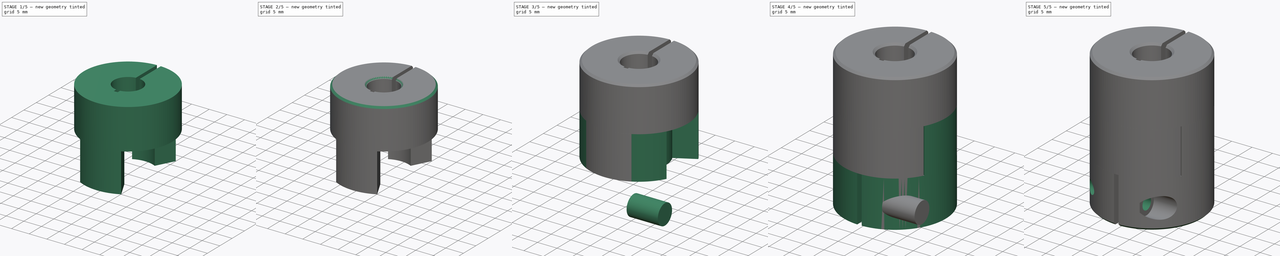
[diagram: build sequence overview — one tinted view per stage of 5, left to right]
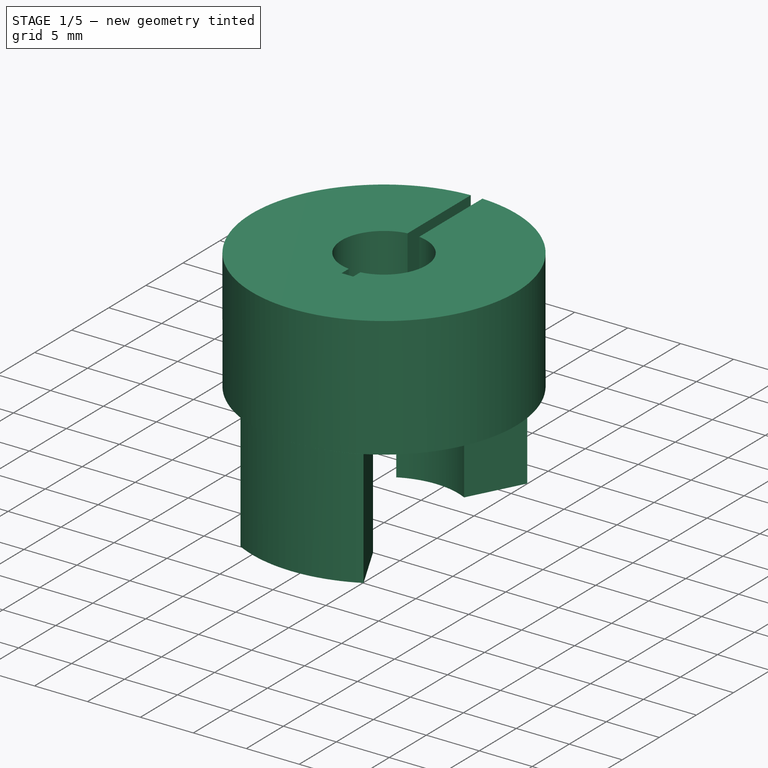
[diagram: stage 1 of 5 — iso view after this stage's code; geometry added in this stage tinted green]
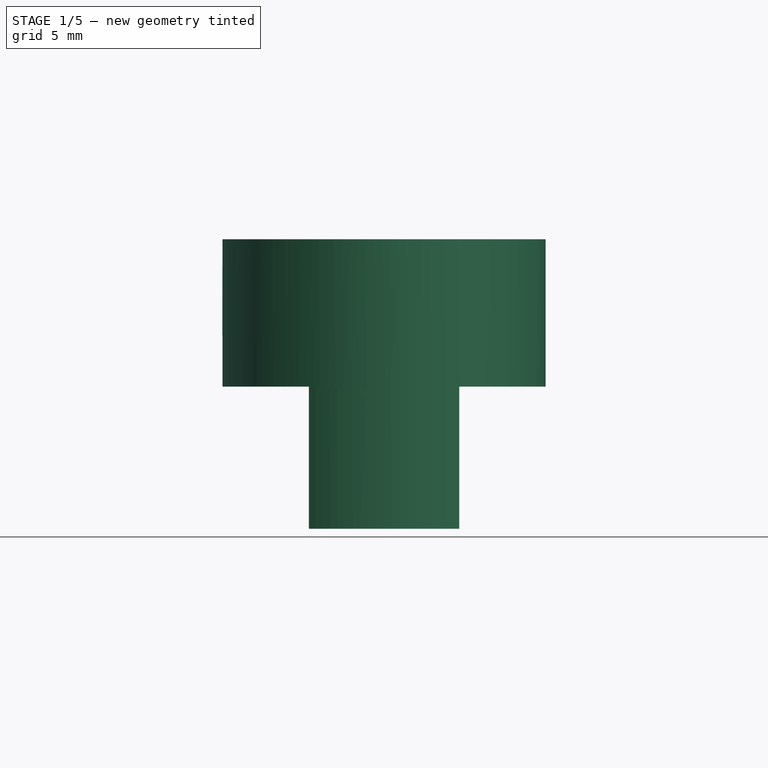
[diagram: stage 1 of 5 — front view after this stage's code; geometry added in this stage tinted green]
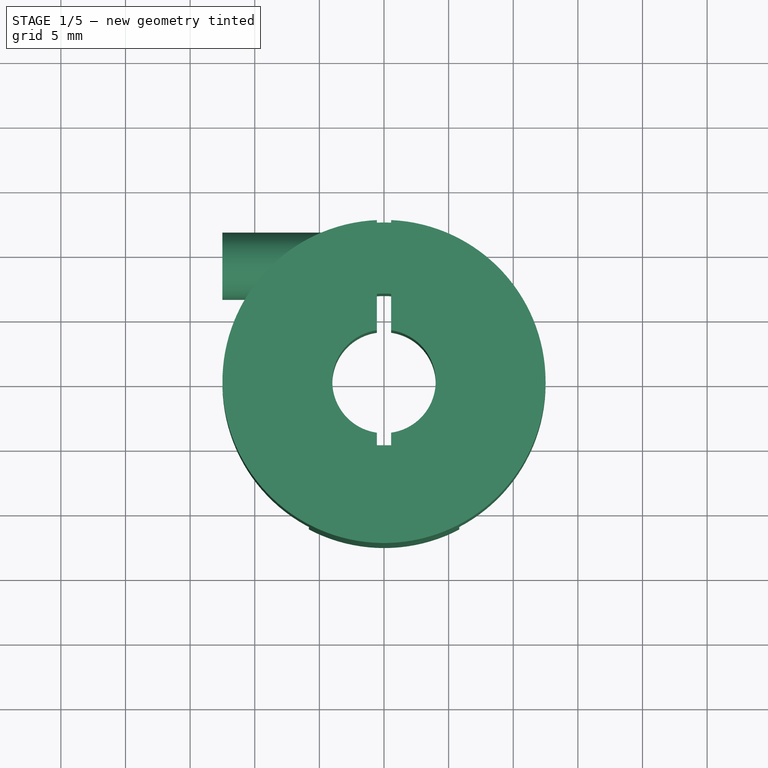
[diagram: stage 1 of 5 — top view after this stage's code; geometry added in this stage tinted green]
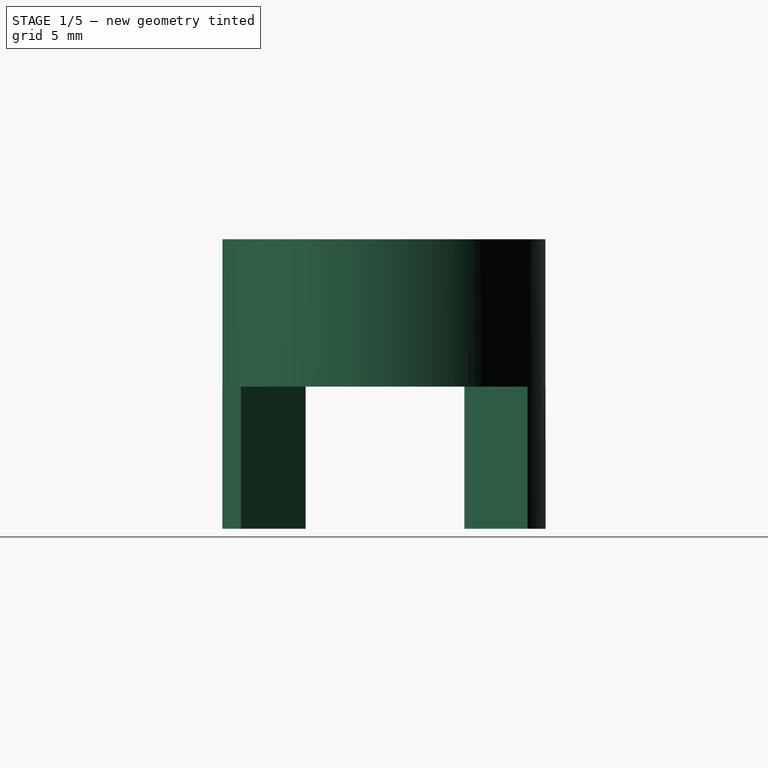
[diagram: stage 1 of 5 — right view after this stage's code; geometry added in this stage tinted green]
FCSTD DOCUMENT  (FreeCAD 0.16R6703 (Git))
Label: Zaxis_coupling_5x8mm
License: All rights reserved
LicenseURL: http://en.wikipedia.org/wiki/All_rights_reserved
objects: Sketcher::SketchObject×12, PartDesign::Pad×6, PartDesign::Pocket×5, PartDesign::Chamfer×4, Part::Cut×2, PartDesign::Revolution×1
note: 42 computed .brp shape members not serialized (recipe doc carries the construction recipe); baked Part::Feature solids carry a one-line shape summary decoded from their .brp

FEATURE [Sketcher::SketchObject] Sketch005
  Placement = pos=(0,0,22.4) rot=(0,0,1;0rad)
  sketch-geometry (8):
    g0: ArcOfCircle CenterX=0.0107961 CenterY=-0.00114549 CenterZ=0 NormalX=0 NormalY=0 NormalZ=1 Radius=12.5 StartAngle=4.2277 EndAngle=5.19555
    g1: ArcOfCircle CenterX=4.1e-11 CenterY=-0.00124568 CenterZ=0 NormalX=0 NormalY=0 NormalZ=1 Radius=7 StartAngle=1.09507 EndAngle=2.04652
    g2: LineSegment StartX=3.2059 StartY=6.22147 StartZ=0 EndX=5.75166 EndY=11.1026 EndZ=0
    g3: LineSegment StartX=-3.2059 StartY=6.22147 StartZ=0 EndX=-5.7395 EndY=11.0977 EndZ=0
    g4: LineSegment StartX=-5.81333 StartY=-11.0614 StartZ=0 EndX=-3.21246 EndY=-6.06508 EndZ=0
    g5: LineSegment StartX=5.81807 StartY=-11.0703 StartZ=0 EndX=3.21246 EndY=-6.06508 EndZ=0
    g6: ArcOfCircle CenterX=0 CenterY=0.154251 CenterZ=0 NormalX=0 NormalY=0 NormalZ=1 Radius=7 StartAngle=4.23561 EndAngle=5.18917
    g7: ArcOfCircle CenterX=0.0107961 CenterY=-0.00114549 CenterZ=0 NormalX=0 NormalY=0 NormalZ=1 Radius=12.5 StartAngle=1.09362 EndAngle=2.04882
  constraints (18):
    c: Radius(g0) = 12.5
    c: Coincident(g3,g1)
    c: Symmetric(g1,g1,g-2)
    c: Radius(g1) = 7
    c: Angle(g2,g3) = 0.959931
    c: Coincident(g6,g4)
    c: Coincident(g6,g5)
    c: Symmetric(g4,g5,g-2)
    c: Radius(g6) = 7
    c: Angle(g4,g5) = 0.959931
    c: Coincident(g0,g4)
    c: Coincident(g7,g3)
    c: Equal(g0,g7)
    c: Coincident(g0,g5)
    c: PointOnObject(g7,g2)
    c: Coincident(g0,g7)
    c: Coincident(g2,g7)
    c: Coincident(g2,g1)
FEATURE [PartDesign::Pad] Pad002
  Length = 11
  Length2 = 100
  Placement = pos=(0,0,22.4) rot=(0,0,1;0rad)
  Reversed = true
  Sketch = -> Sketch005
  Type = 0
FEATURE [Sketcher::SketchObject] Sketch006
  Placement = pos=(0,0,22.4) rot=(0,0,1;0rad)
  Support = -> Pad002 [Face11]
  sketch-geometry (1):
    g0: Circle CenterX=0 CenterY=0 CenterZ=0 NormalX=0 NormalY=0 NormalZ=1 Radius=12.5
  constraints (2):
    c: Coincident(g0,g-1)
    c: Radius(g0) = 12.5
FEATURE [PartDesign::Pad] Pad003
  Length = 11.4
  Length2 = 100
  Placement = pos=(0,0,22.4) rot=(0,0,1;0rad)
  Sketch = -> Sketch006
  Type = 0
FEATURE [Sketcher::SketchObject] Sketch007
  Placement = pos=(0,0,33.8) rot=(0,0,1;0rad)
  Support = -> Pad003 [Face1]
  sketch-geometry (8):
    g0: ArcOfCircle CenterX=0 CenterY=0 CenterZ=0 NormalX=0 NormalY=0 NormalZ=1 Radius=4 StartAngle=4.85033 EndAngle=7.71604
    g1: LineSegment StartX=-0.55 StartY=12.5676 StartZ=0 EndX=0.55 EndY=12.5676 EndZ=0
    g2: LineSegment StartX=0.55 StartY=12.5676 StartZ=0 EndX=0.55 EndY=3.96201 EndZ=0
    g3: LineSegment StartX=0.55 StartY=-4.93244 StartZ=0 EndX=-0.55 EndY=-4.93244 EndZ=0
    g4: LineSegment StartX=-0.55 StartY=-4.93244 StartZ=0 EndX=-0.55 EndY=-3.96201 EndZ=0
    g5: LineSegment StartX=-0.55 StartY=3.96201 StartZ=0 EndX=-0.55 EndY=12.5676 EndZ=0
    g6: LineSegment StartX=0.55 StartY=-3.96201 StartZ=0 EndX=0.55 EndY=-4.93244 EndZ=0
    g7: ArcOfCircle CenterX=0 CenterY=0 CenterZ=0 NormalX=0 NormalY=0 NormalZ=1 Radius=4 StartAngle=1.70873 EndAngle=4.57445
  constraints (21):
    c: Coincident(g0,g-1)
    c: Radius(g0) = 4
    c: Coincident(g1,g2)
    c: Coincident(g6,g3)
    c: Coincident(g3,g4)
    c: Coincident(g5,g1)
    c: Horizontal(g1)
    c: Horizontal(g3)
    c: Vertical(g2)
    c: Vertical(g4)
    c: Symmetric(g1,g1,g-2)
    c: DistanceX(g3,g3) = 1.1
    c: DistanceY(g4,g5) = 17.5
    c: Tangent(g4,g5)
    c: Tangent(g2,g6)
    c: Coincident(g0,g6)
    c: Coincident(g7,g4)
    c: Equal(g0,g7)
    c: Coincident(g0,g2)
    c: Coincident(g7,g5)
    c: Coincident(g0,g7)
FEATURE [PartDesign::Pocket] Pocket002
  Length = 11.4
  Placement = pos=(0,0,22.4) rot=(0,0,1;0rad)
  Sketch = -> Sketch007
  Type = 0
FEATURE [Sketcher::SketchObject] Sketch010
  Placement = pos=(-12.5,0,0) rot=(0.57735,0.57735,0.57735;2.0944rad)
  sketch-geometry (1):
    g0: Circle CenterX=9 CenterY=29 CenterZ=0 NormalX=0 NormalY=0 NormalZ=1 Radius=2.6
  constraints (1):
    c: Radius(g0) = 2.6
FEATURE [PartDesign::Pad] Pad005
  Length = 8
  Length2 = 100
  Placement = pos=(-12.5,0,0) rot=(0.57735,0.57735,0.57735;2.0944rad)
  Sketch = -> Sketch010
  Type = 0
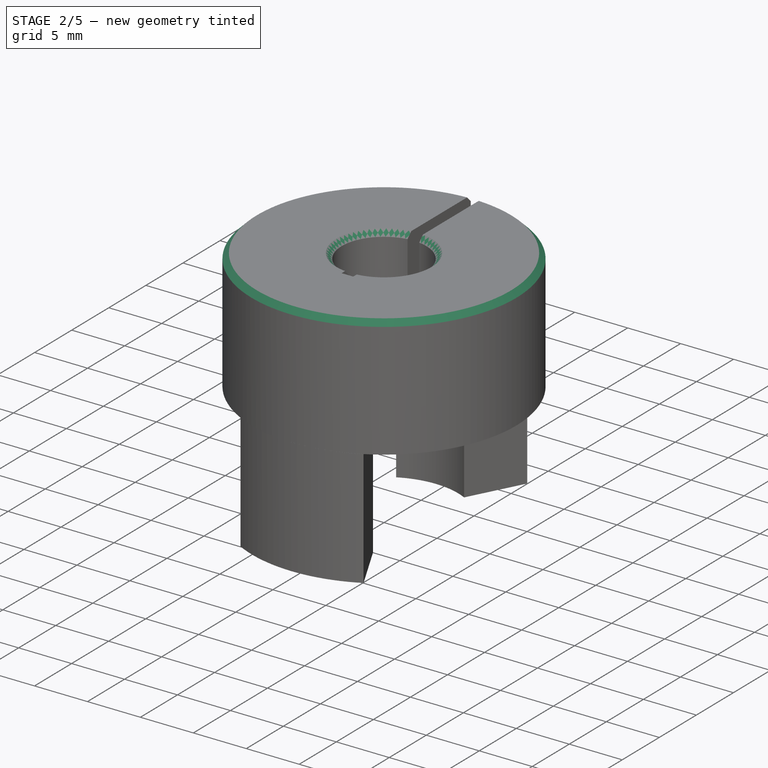
[diagram: stage 2 of 5 — iso view after this stage's code; geometry added in this stage tinted green]
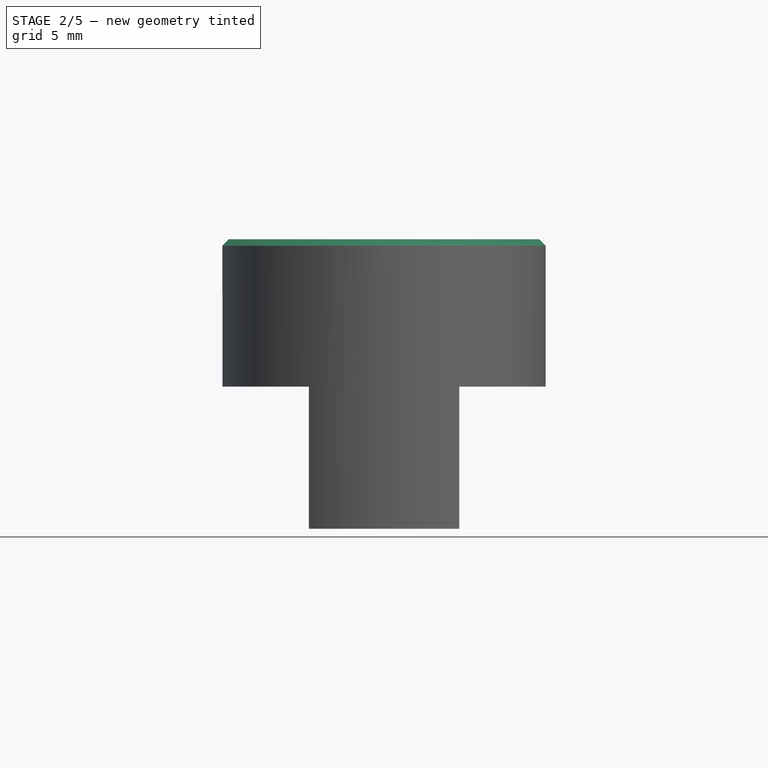
[diagram: stage 2 of 5 — front view after this stage's code; geometry added in this stage tinted green]
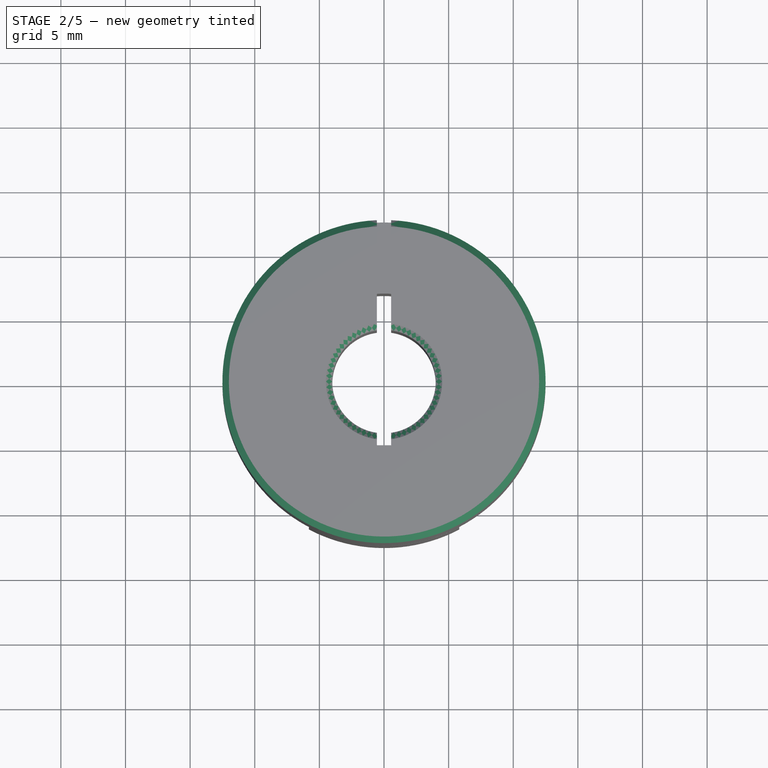
[diagram: stage 2 of 5 — top view after this stage's code; geometry added in this stage tinted green]
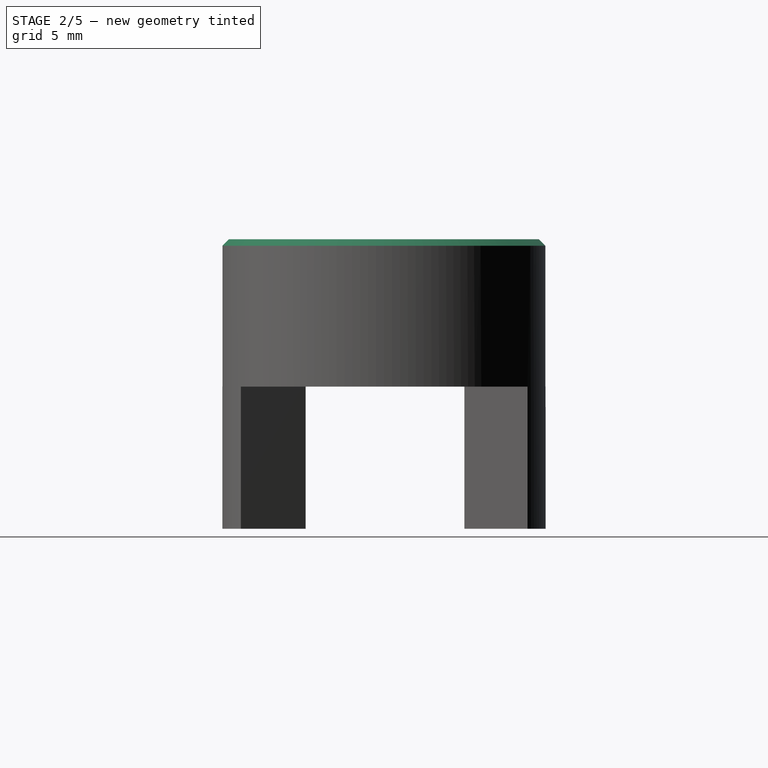
[diagram: stage 2 of 5 — right view after this stage's code; geometry added in this stage tinted green]
FEATURE [PartDesign::Chamfer] Chamfer001
  Base = -> Pocket002 [Edge3,Edge7]
  Placement = pos=(0,0,22.4) rot=(0,0,1;0rad)
  Size = 0.5
FEATURE [PartDesign::Chamfer] Chamfer002  label="upper_coupling"
  Base = -> Chamfer001 [Edge5]
  Placement = pos=(0,0,22.4) rot=(0,0,1;0rad)
  Size = 0.5
FEATURE [Part::Cut] Cut001
  Base = -> Chamfer002
  Tool = -> Pad005
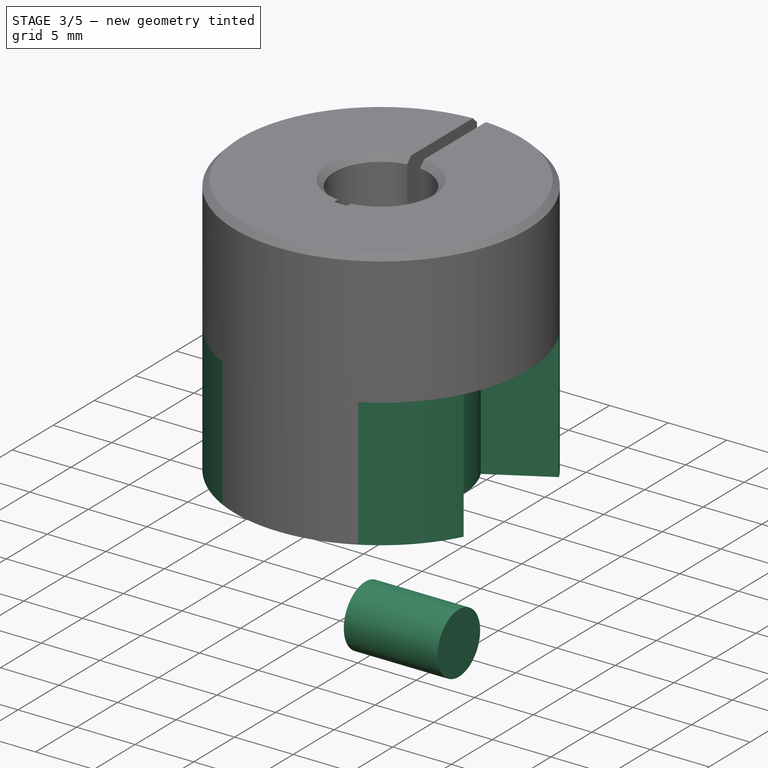
[diagram: stage 3 of 5 — iso view after this stage's code; geometry added in this stage tinted green]
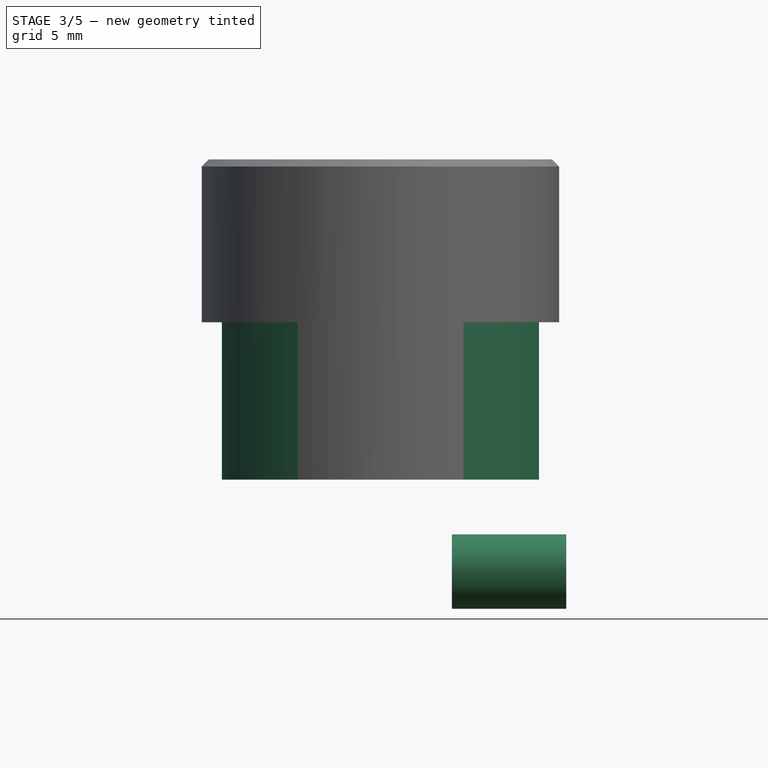
[diagram: stage 3 of 5 — front view after this stage's code; geometry added in this stage tinted green]
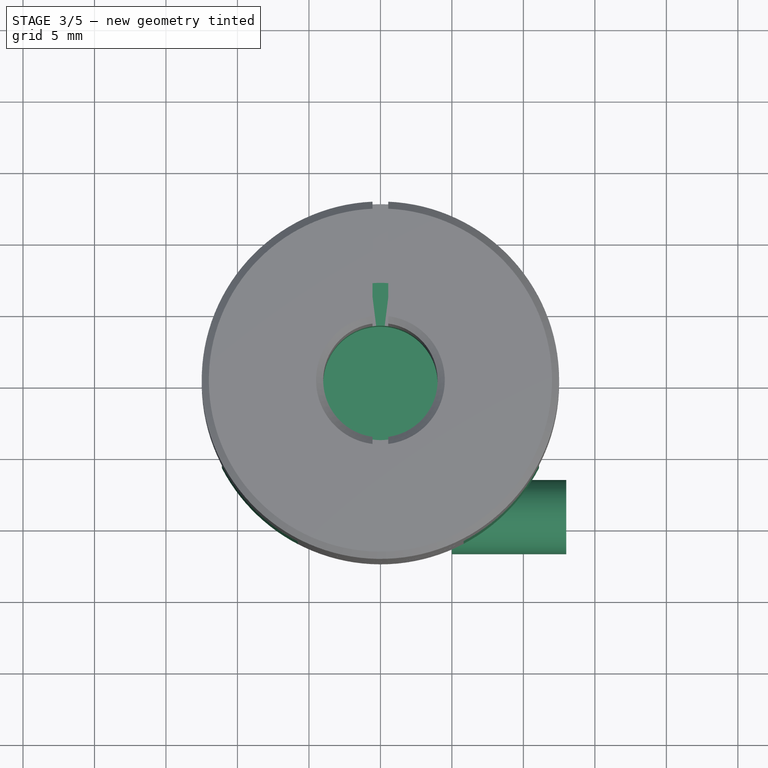
[diagram: stage 3 of 5 — top view after this stage's code; geometry added in this stage tinted green]
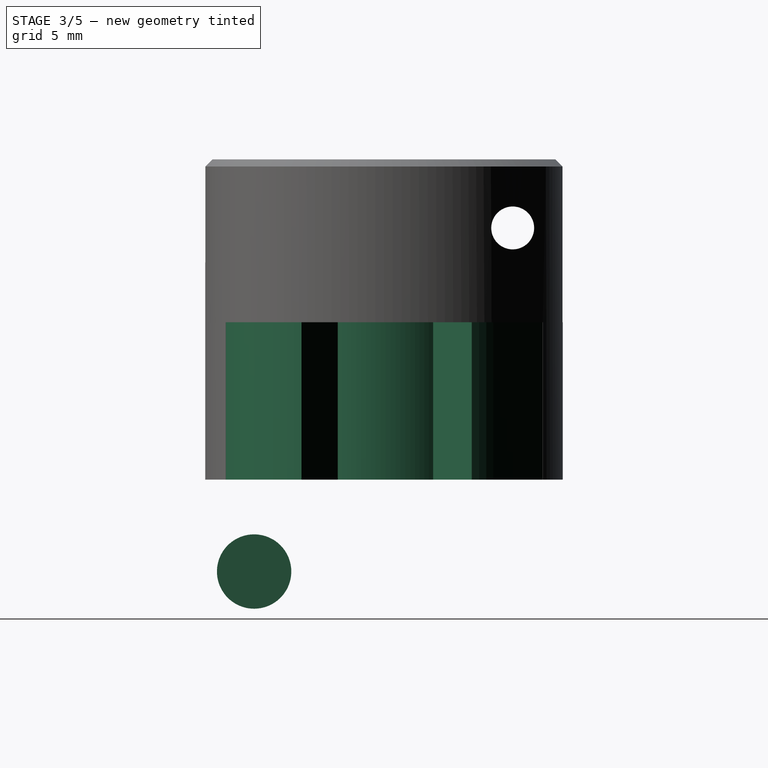
[diagram: stage 3 of 5 — right view after this stage's code; geometry added in this stage tinted green]
FEATURE [Sketcher::SketchObject] Sketch003
  Placement = pos=(13,0,0) rot=(0.57735,0.57735,0.57735;2.0944rad)
  sketch-geometry (1):
    g0: Circle CenterX=-9.08541 CenterY=4.96859 CenterZ=0 NormalX=0 NormalY=0 NormalZ=1 Radius=2.6
  constraints (1):
    c: Radius(g0) = 2.6
FEATURE [PartDesign::Pad] Pad001
  Length = 8
  Length2 = 100
  Placement = pos=(13,0,0) rot=(0.57735,0.57735,0.57735;2.0944rad)
  Reversed = true
  Sketch = -> Sketch003
  Type = 0
FEATURE [Sketcher::SketchObject] Sketch008
  Placement = pos=(0,0,11.4) rot=(0,0,1;0rad)
  sketch-geometry (16):
    g0: ArcOfCircle CenterX=0 CenterY=0 CenterZ=0 NormalX=0 NormalY=0 NormalZ=1 Radius=12.5 StartAngle=2.05076 EndAngle=2.62873
    g1: ArcOfCircle CenterX=0 CenterY=0 CenterZ=0 NormalX=0 NormalY=0 NormalZ=1 Radius=7 StartAngle=2.62873 EndAngle=3.62156
    g2: LineSegment StartX=-6.0994 StartY=3.43472 StartZ=0 EndX=-10.8918 EndY=6.13343 EndZ=0
    g3: LineSegment StartX=-3.23224 StartY=6.20908 StartZ=0 EndX=-5.77186 EndY=11.0876 EndZ=0
    g4: LineSegment StartX=6.0994 StartY=3.43472 StartZ=0 EndX=10.8918 EndY=6.13343 EndZ=0
    g5: LineSegment StartX=3.23224 StartY=6.20908 StartZ=0 EndX=5.77186 EndY=11.0876 EndZ=0
    g6: LineSegment StartX=-6.20908 StartY=-3.23224 StartZ=0 EndX=-11.0876 EndY=-5.77186 EndZ=0
    g7: LineSegment StartX=-3.23224 StartY=-6.20908 StartZ=0 EndX=-5.77186 EndY=-11.0876 EndZ=0
    g8: LineSegment StartX=6.20908 StartY=-3.23224 StartZ=0 EndX=11.0876 EndY=-5.77186 EndZ=0
    g9: LineSegment StartX=3.23224 StartY=-6.20908 StartZ=0 EndX=5.77186 EndY=-11.0876 EndZ=0
    g10: ArcOfCircle CenterX=0 CenterY=0 CenterZ=0 NormalX=0 NormalY=0 NormalZ=1 Radius=12.5 StartAngle=5.19235 EndAngle=5.80322
    g11: ArcOfCircle CenterX=0 CenterY=0 CenterZ=0 NormalX=0 NormalY=0 NormalZ=1 Radius=12.5 StartAngle=0.512863 EndAngle=1.09083
    g12: ArcOfCircle CenterX=0 CenterY=0 CenterZ=0 NormalX=0 NormalY=0 NormalZ=1 Radius=12.5 StartAngle=3.62156 EndAngle=4.23242
    g13: ArcOfCircle CenterX=0 CenterY=0 CenterZ=0 NormalX=0 NormalY=0 NormalZ=1 Radius=7 StartAngle=1.09083 EndAngle=2.05076
    g14: ArcOfCircle CenterX=0 CenterY=0 CenterZ=0 NormalX=0 NormalY=0 NormalZ=1 Radius=7 StartAngle=5.80322 EndAngle=6.79605
    g15: ArcOfCircle CenterX=0 CenterY=0 CenterZ=0 NormalX=0 NormalY=0 NormalZ=1 Radius=7 StartAngle=4.23242 EndAngle=5.19235
  constraints (40):
    c: Coincident(g0,g-1)
    c: Radius(g0) = 12.5
    c: Coincident(g1,g-1)
    c: Radius(g1) = 7
    c: PointOnObject(g4,g0)
    c: PointOnObject(g8,g0)
    c: Angle(g5,g3) = 0.959931
    c: Angle(g7,g9) = 0.959931
    c: Angle(g6,g7) = 0.610865
    c: Angle(g9,g8) = 0.610865
    c: Angle(g4,g5) = 0.577968
    c: Angle(g3,g2) = 0.577968
    c: Coincident(g0,g3)
    c: Coincident(g11,g5)
    c: Equal(g0,g10)
    c: Coincident(g12,g7)
    c: Coincident(g10,g9)
    c: Coincident(g0,g10)
    c: Equal(g10,g11)
    c: PointOnObject(g10,g8)
    c: PointOnObject(g11,g4)
    c: Coincident(g10,g11)
    c: Equal(g0,g12)
    c: Coincident(g0,g2)
    c: Coincident(g12,g6)
    c: Coincident(g0,g12)
    c: Coincident(g1,g2)
    c: Coincident(g13,g3)
    c: Equal(g1,g13)
    c: Coincident(g14,g4)
    c: Coincident(g13,g5)
    c: Coincident(g1,g13)
    c: Equal(g1,g14)
    c: Coincident(g14,g8)
    c: Coincident(g1,g14)
    c: Equal(g1,g15)
    c: Coincident(g1,g6)
    c: Coincident(g15,g7)
    c: Coincident(g1,g15)
    c: Coincident(g9,g15)
FEATURE [PartDesign::Pad] Pad004
  Length = 11
  Length2 = 100
  Placement = pos=(0,0,11.4) rot=(0,0,1;0rad)
  Sketch = -> Sketch008
  Type = 0
FEATURE [Sketcher::SketchObject] Sketch009
  Placement = pos=(0,0,22.4) rot=(0,0,1;0rad)
  Support = -> Pad004 [Face18]
  sketch-geometry (1):
    g0: Circle CenterX=0 CenterY=0 CenterZ=0 NormalX=0 NormalY=0 NormalZ=1 Radius=4
  constraints (2):
    c: Coincident(g0,g-1)
    c: Radius(g0) = 4
FEATURE [PartDesign::Pocket] Pocket003
  Length = 4
  Placement = pos=(0,0,11.4) rot=(0,0,1;0rad)
  Sketch = -> Sketch009
  Type = 0
FEATURE [Sketcher::SketchObject] Sketch011
  Placement = pos=(-4.5,0,0) rot=(-0.57735,0.57735,0.57735;4.18879rad)
  Support = -> Cut001 [Face31]
  sketch-geometry (1):
    g0: Circle CenterX=-9 CenterY=29 CenterZ=0 NormalX=0 NormalY=0 NormalZ=1 Radius=1.5
  constraints (1):
    c: Radius(g0) = 1.5
FEATURE [PartDesign::Pocket] Pocket004
  Length = 5
  Sketch = -> Sketch011
  Type = 1
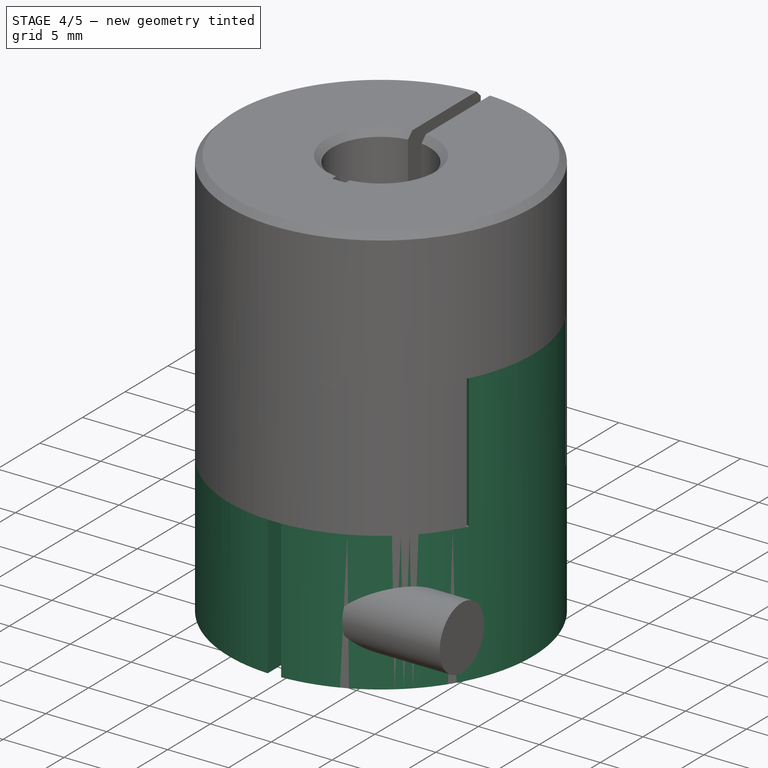
[diagram: stage 4 of 5 — iso view after this stage's code; geometry added in this stage tinted green]
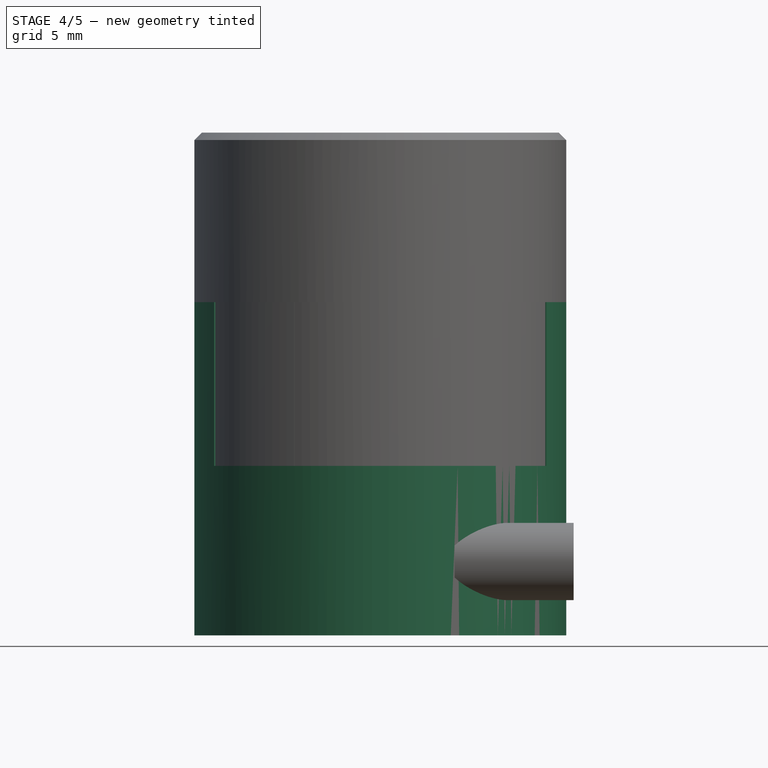
[diagram: stage 4 of 5 — front view after this stage's code; geometry added in this stage tinted green]
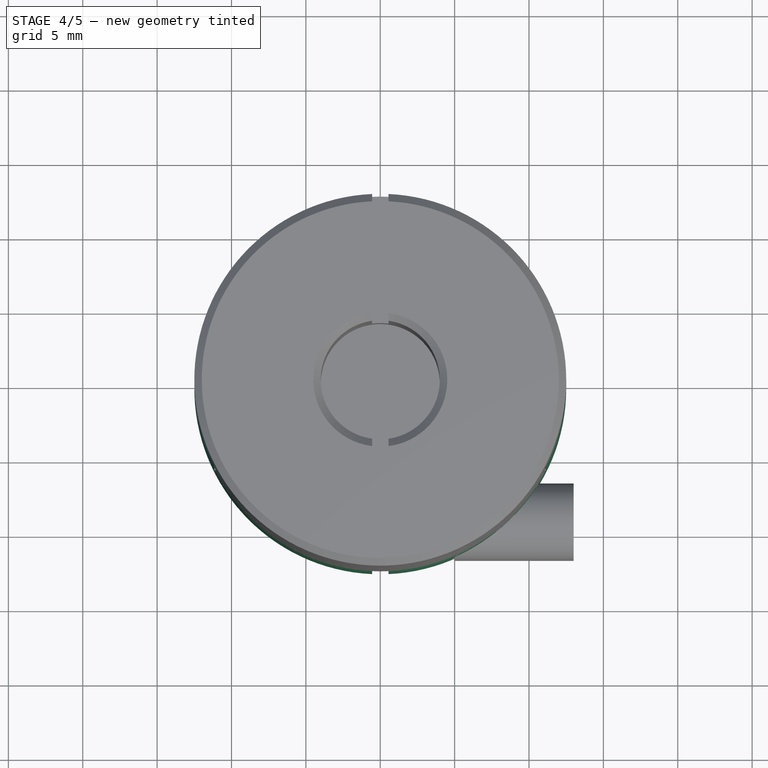
[diagram: stage 4 of 5 — top view after this stage's code; geometry added in this stage tinted green]
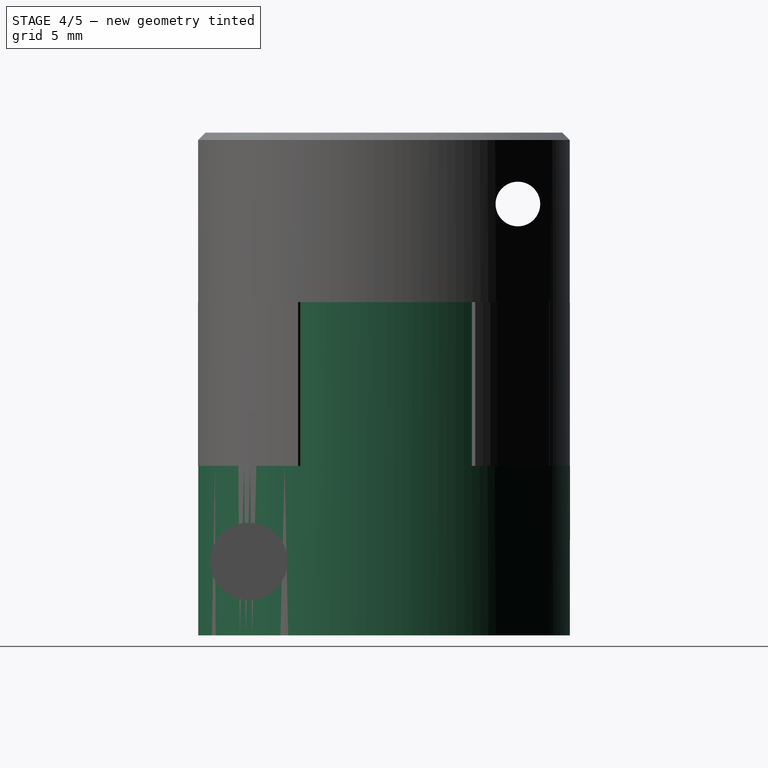
[diagram: stage 4 of 5 — right view after this stage's code; geometry added in this stage tinted green]
FEATURE [Sketcher::SketchObject] Sketch
  Placement = pos=(0,0,0) rot=(1,0,0;1.5708rad)
  sketch-geometry (4):
    g0: LineSegment StartX=0 StartY=0 StartZ=0 EndX=12.5 EndY=0 EndZ=0
    g1: LineSegment StartX=12.5 StartY=0 StartZ=0 EndX=12.5 EndY=11.4 EndZ=0
    g2: LineSegment StartX=12.5 StartY=11.4 StartZ=0 EndX=0 EndY=11.4 EndZ=0
    g3: LineSegment StartX=0 StartY=11.4 StartZ=0 EndX=0 EndY=0 EndZ=0
  constraints (11):
    c: Coincident(g0,g-1)
    c: PointOnObject(g0,g-1)
    c: Coincident(g0,g1)
    c: Vertical(g1)
    c: Coincident(g1,g2)
    c: Horizontal(g2)
    c: Coincident(g2,g3)
    c: Coincident(g3,g-1)
    c: Vertical(g3)
    c: DistanceY(g3,g3) = 11.4
    c: DistanceX(g0,g0) = 12.5
FEATURE [PartDesign::Revolution] Revolution
  Angle = 360
  Axis = (0,0,1)
  Base = (0,0,0)
  Placement = pos=(0,0,0) rot=(1,0,0;1.5708rad)
  ReferenceAxis = -> Sketch [V_Axis]
  Reversed = true
  Sketch = -> Sketch
FEATURE [Sketcher::SketchObject] Sketch001
  Placement = pos=(0,0,11.4) rot=(0,0,1;3.14159rad)
  Support = -> Revolution [Face3]
  sketch-geometry (8):
    g0: ArcOfCircle CenterX=0 CenterY=0 CenterZ=0 NormalX=0 NormalY=0 NormalZ=1 Radius=2.5 StartAngle=1.79261 EndAngle=4.49057
    g1: LineSegment StartX=-0.55 StartY=12.5516 StartZ=0 EndX=0.55 EndY=12.5516 EndZ=0
    g2: LineSegment StartX=0.55 StartY=12.5516 StartZ=0 EndX=0.55 EndY=2.43875 EndZ=0
    g3: LineSegment StartX=0.55 StartY=-4.94836 StartZ=0 EndX=-0.55 EndY=-4.94836 EndZ=0
    g4: LineSegment StartX=-0.55 StartY=-4.94836 StartZ=0 EndX=-0.55 EndY=-2.43875 EndZ=0
    g5: ArcOfCircle CenterX=0 CenterY=0 CenterZ=0 NormalX=0 NormalY=0 NormalZ=1 Radius=2.5 StartAngle=4.9342 EndAngle=7.63217
    g6: LineSegment StartX=-0.55 StartY=2.43875 StartZ=0 EndX=-0.55 EndY=12.5516 EndZ=0
    g7: LineSegment StartX=0.55 StartY=-2.43875 StartZ=0 EndX=0.55 EndY=-4.94836 EndZ=0
  constraints (21):
    c: Coincident(g0,g-1)
    c: Radius(g0) = 2.5
    c: Coincident(g1,g2)
    c: Coincident(g7,g3)
    c: Coincident(g3,g4)
    c: Coincident(g6,g1)
    c: Horizontal(g1)
    c: Horizontal(g3)
    c: Vertical(g2)
    c: Vertical(g4)
    c: Symmetric(g1,g1,g-2)
    c: DistanceX(g3,g3) = 1.1
    c: Equal(g0,g5)
    c: Coincident(g0,g5)
    c: Tangent(g4,g6)
    c: PointOnObject(g4,g0)
    c: Coincident(g2,g5)
    c: Coincident(g7,g5)
    c: Tangent(g2,g7)
    c: PointOnObject(g6,g0)
    c: DistanceY(g3,g1) = 17.5
FEATURE [PartDesign::Pocket] Pocket
  Length = 5
  Placement = pos=(0,0,0) rot=(1,0,0;1.5708rad)
  Sketch = -> Sketch001
  Type = 1
FEATURE [Sketcher::SketchObject] Sketch002
  Placement = pos=(0,0,11.4) rot=(0,0,1;3.14159rad)
  Support = -> Pocket [Face11]
  sketch-geometry (8):
    g0: ArcOfCircle CenterX=0 CenterY=0 CenterZ=0 NormalX=0 NormalY=0 NormalZ=1 Radius=12.5 StartAngle=5.78932 EndAngle=6.74925
    g1: LineSegment StartX=-6.31225 StartY=3.18677 StartZ=0 EndX=-11.1586 EndY=5.63347 EndZ=0
    g2: LineSegment StartX=-6.23101 StartY=-3.34283 StartZ=0 EndX=-11.015 EndY=-5.90935 EndZ=0
    g3: LineSegment StartX=6.3169 StartY=3.17755 StartZ=0 EndX=11.1668 EndY=5.61717 EndZ=0
    g4: LineSegment StartX=6.22612 StartY=-3.35193 StartZ=0 EndX=11.0063 EndY=-5.92543 EndZ=0
    g5: ArcOfCircle CenterX=0 CenterY=0 CenterZ=0 NormalX=0 NormalY=0 NormalZ=1 Radius=7.07107 StartAngle=2.67407 EndAngle=3.634
    g6: ArcOfCircle CenterX=0 CenterY=0 CenterZ=0 NormalX=0 NormalY=0 NormalZ=1 Radius=7.07107 StartAngle=5.78932 EndAngle=6.74925
    g7: ArcOfCircle CenterX=0 CenterY=0 CenterZ=0 NormalX=0 NormalY=0 NormalZ=1 Radius=12.5 StartAngle=2.67407 EndAngle=3.634
  constraints (17):
    c: Coincident(g0,g-1)
    c: Radius(g0) = 12.5
    c: Angle(g1,g2) = 0.959931
    c: Angle(g4,g3) = 0.959931
    c: Coincident(g5,g-1)
    c: Equal(g5,g6)
    c: Coincident(g5,g6)
    c: Coincident(g1,g5)
    c: Coincident(g2,g5)
    c: Coincident(g3,g6)
    c: Coincident(g4,g6)
    c: Coincident(g0,g4)
    c: Coincident(g7,g2)
    c: Equal(g0,g7)
    c: Coincident(g0,g3)
    c: Coincident(g7,g1)
    c: Coincident(g0,g7)
FEATURE [PartDesign::Pad] Pad
  Length = 11
  Length2 = 100
  Placement = pos=(0,0,0) rot=(1,0,0;1.5708rad)
  Sketch = -> Sketch002
  Type = 0
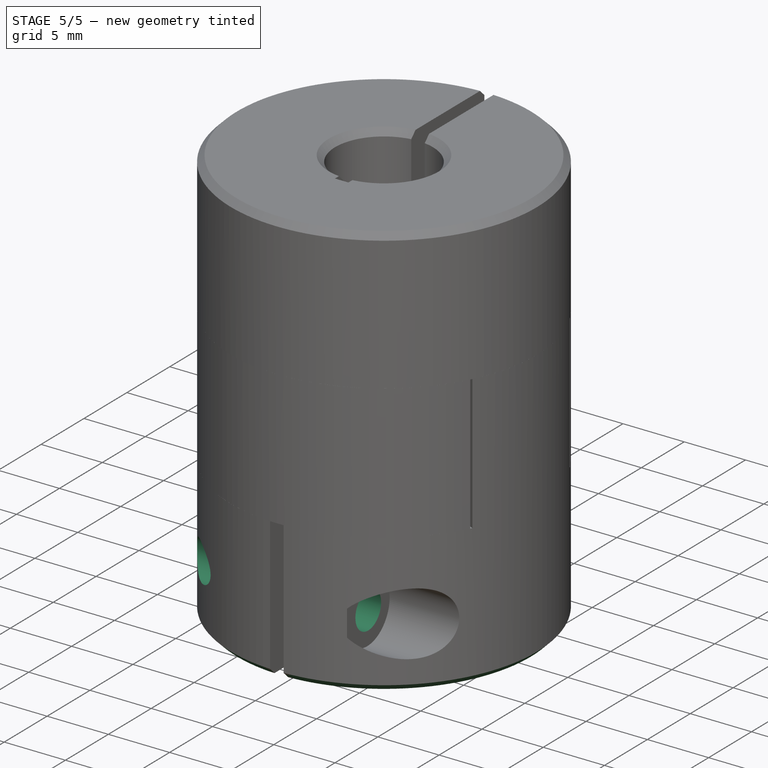
[diagram: stage 5 of 5 — iso view after this stage's code; geometry added in this stage tinted green]
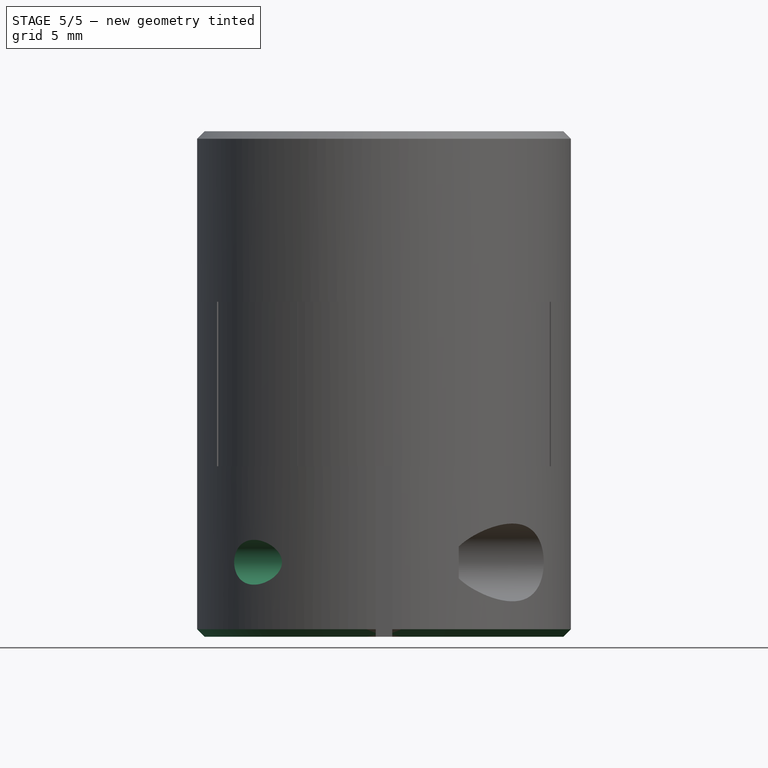
[diagram: stage 5 of 5 — front view after this stage's code; geometry added in this stage tinted green]
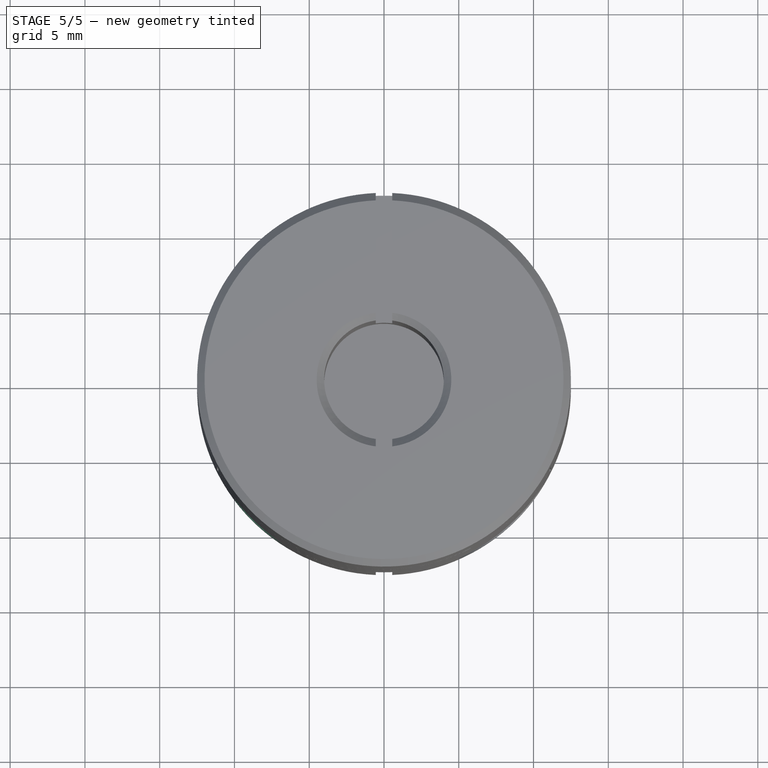
[diagram: stage 5 of 5 — top view after this stage's code; geometry added in this stage tinted green]
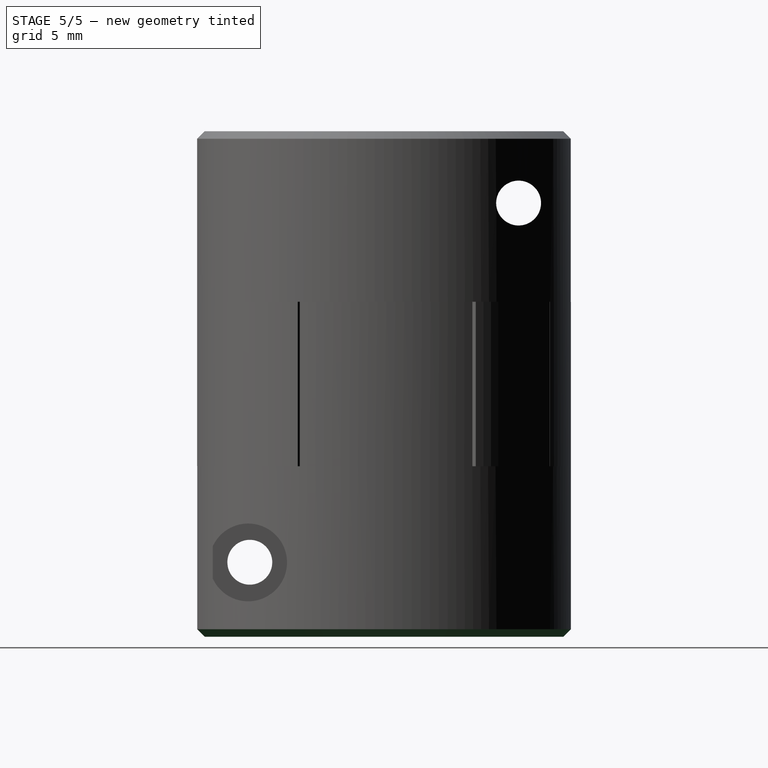
[diagram: stage 5 of 5 — right view after this stage's code; geometry added in this stage tinted green]
FEATURE [PartDesign::Chamfer] Chamfer
  Base = -> Pad [Edge7,Edge3]
  Placement = pos=(0,0,0) rot=(1,0,0;1.5708rad)
  Size = 0.5
FEATURE [Part::Cut] Cut
  Base = -> Chamfer
  Tool = -> Pad001
FEATURE [Sketcher::SketchObject] Sketch004
  Placement = pos=(5,0,0) rot=(0.57735,0.57735,0.57735;2.0944rad)
  Support = -> Cut [Face15]
  sketch-geometry (1):
    g0: Circle CenterX=-8.97442 CenterY=4.98067 CenterZ=0 NormalX=0 NormalY=0 NormalZ=1 Radius=1.5
  constraints (1):
    c: Radius(g0) = 1.5
FEATURE [PartDesign::Pocket] Pocket001
  Length = 5
  Sketch = -> Sketch004
  Type = 1
FEATURE [PartDesign::Chamfer] Chamfer003  label="lower_coupling"
  Base = -> Pocket001 [Edge5]
  Size = 0.5
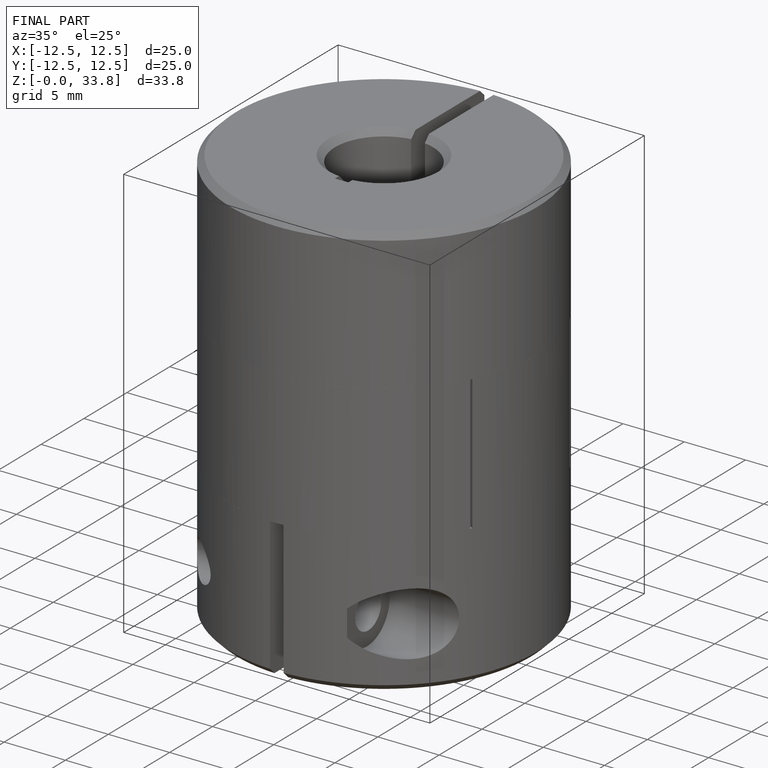
[diagram: finished part — iso view with bounding-box wireframe]
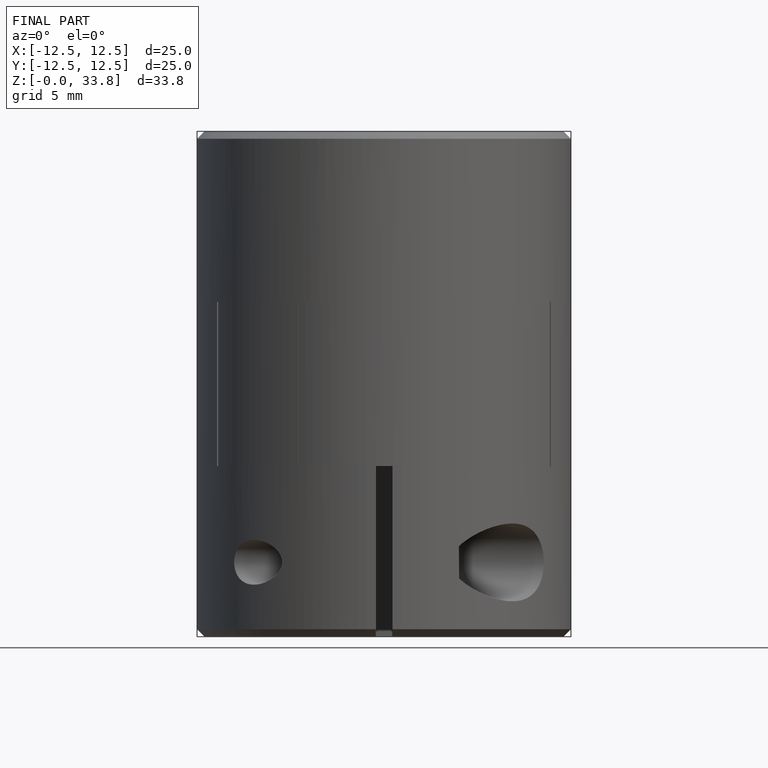
[diagram: finished part — front view with bounding-box wireframe]
